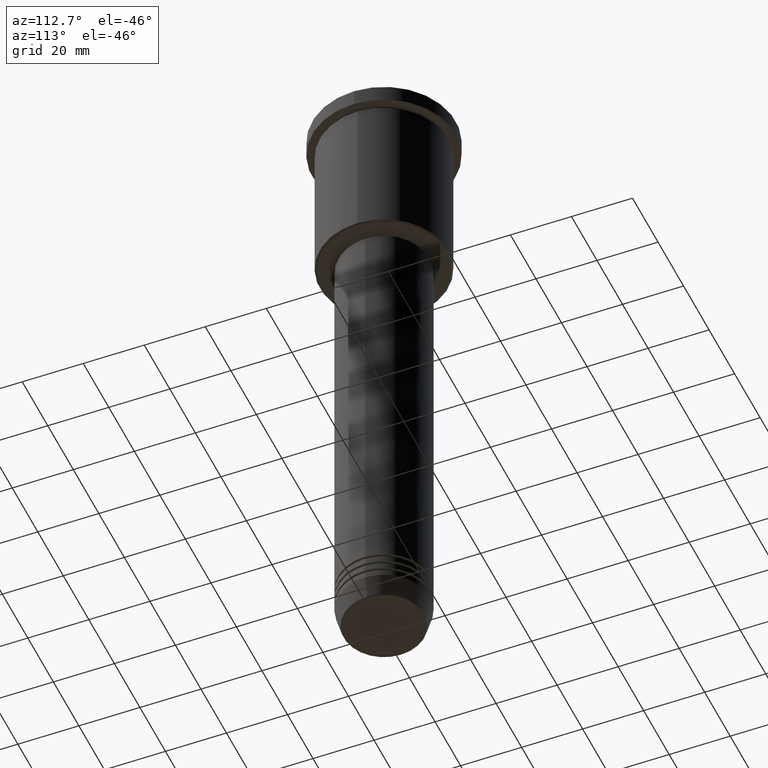
[diagram: clean part render]
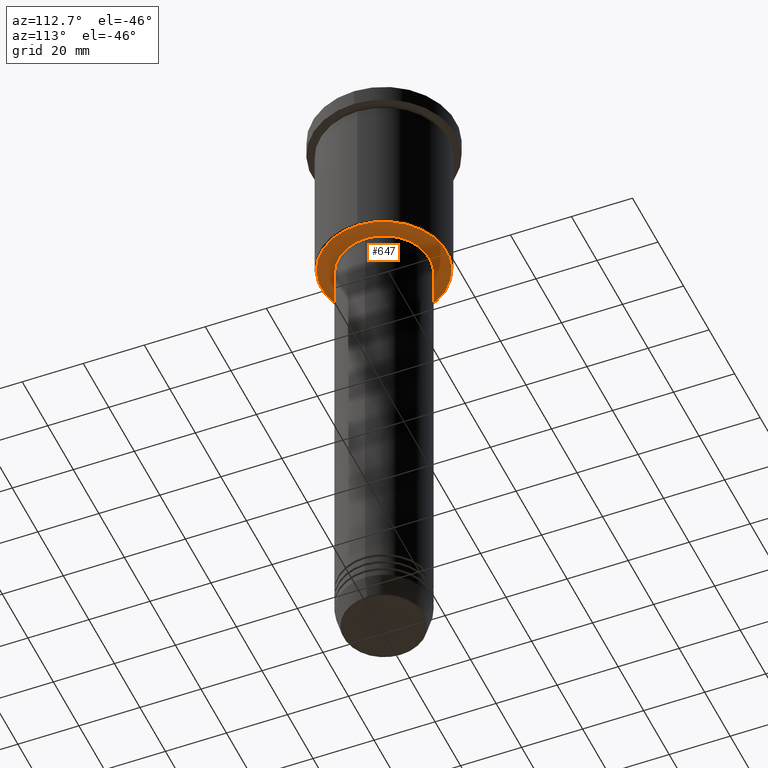
[diagram: same view with one face highlighted and labeled with its STEP entity id]
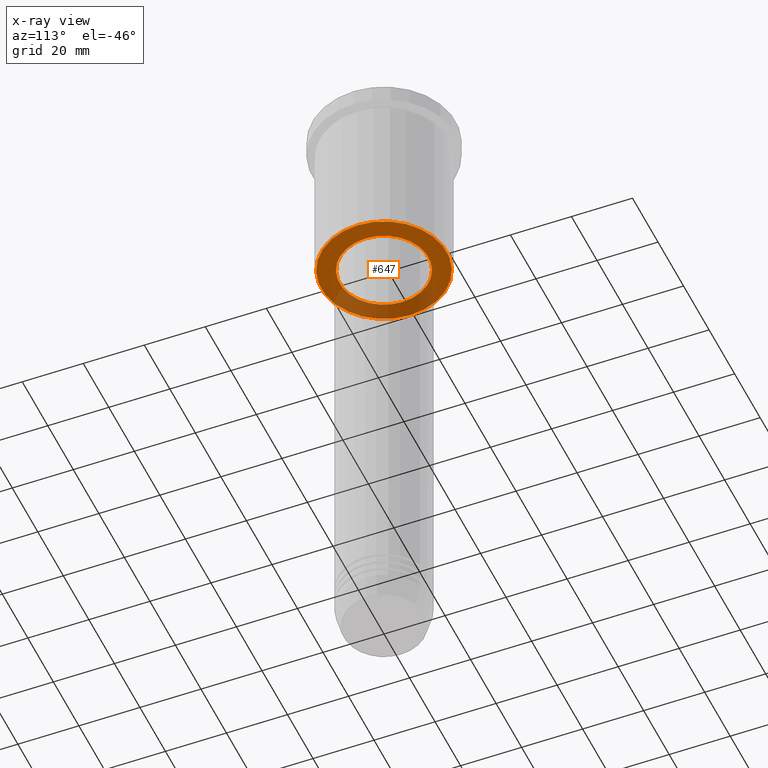
[diagram: x-ray of the same camera — body ghosted, the highlighted face saturated]
A machine part, auxiliary view. The second image highlights one B-rep face of the part: STEP entity #647.
The next image is the same camera in x-ray: the body ghosted, the highlighted face saturated — about 30% of this face is hidden behind the body in this view.
In plain terms, the highlighted planar face has unit normal (0, 0, -1).
Its self-contained STEP definition (entity closure, byte-faithful):
#12 = DIRECTION ( 'NONE',  ( -0.000000000000000000, -0.000000000000000000, 1.000000000000000000 ) ) ;
#17 = DIRECTION ( 'NONE',  ( -1.000000000000000000, 0.000000000000000000, -0.000000000000000000 ) ) ;
#20 = CARTESIAN_POINT ( 'NONE',  ( 0.000000000000000000, 0.000000000000000000, -55.99999999999999289 ) ) ;
#28 = DIRECTION ( 'NONE',  ( 0.000000000000000000, 0.000000000000000000, -1.000000000000000000 ) ) ;
#36 = CIRCLE ( 'NONE', #1009, 20.49999999999998934 ) ;
#67 = EDGE_CURVE ( 'NONE', #375, #561, #36, .T. ) ;
#72 = CIRCLE ( 'NONE', #212, 20.49999999999998934 ) ;
#80 = EDGE_CURVE ( 'NONE', #1175, #848, #135, .T. ) ;
#135 = CIRCLE ( 'NONE', #558, 14.49999999999999822 ) ;
#159 = CARTESIAN_POINT ( 'NONE',  ( 20.49999999999998934, 0.000000000000000000, -55.99999999999999289 ) ) ;
#188 = DIRECTION ( 'NONE',  ( 0.000000000000000000, 0.000000000000000000, -1.000000000000000000 ) ) ;
#212 = AXIS2_PLACEMENT_3D ( 'NONE', #1036, #28, #393 ) ;
#261 = ORIENTED_EDGE ( 'NONE', *, *, #67, .T. ) ;
#324 = EDGE_LOOP ( 'NONE', ( #1018, #1120 ) ) ;
#341 = FACE_OUTER_BOUND ( 'NONE', #480, .T. ) ;
#375 = VERTEX_POINT ( 'NONE', #159 ) ;
#376 = DIRECTION ( 'NONE',  ( 1.000000000000000000, 0.000000000000000000, 0.000000000000000000 ) ) ;
#386 = CARTESIAN_POINT ( 'NONE',  ( 0.000000000000000000, 0.000000000000000000, -55.99999999999999289 ) ) ;
#393 = DIRECTION ( 'NONE',  ( -1.000000000000000000, 0.000000000000000000, 0.000000000000000000 ) ) ;
#474 = CARTESIAN_POINT ( 'NONE',  ( 0.000000000000000000, 21.00000000000000000, -55.99999999999999289 ) ) ;
#477 = DIRECTION ( 'NONE',  ( 0.000000000000000000, 0.000000000000000000, -1.000000000000000000 ) ) ;
#480 = EDGE_LOOP ( 'NONE', ( #261, #1067 ) ) ;
#558 = AXIS2_PLACEMENT_3D ( 'NONE', #20, #12, #376 ) ;
#561 = VERTEX_POINT ( 'NONE', #1011 ) ;
#647 = ADVANCED_FACE ( 'NONE', ( #341, #706 ), #1064, .T. ) ;
#706 = FACE_BOUND ( 'NONE', #324, .T. ) ;
#727 = CARTESIAN_POINT ( 'NONE',  ( -14.49999999999999822, 1.775737858763662015E-15, -55.99999999999999289 ) ) ;
#736 = EDGE_CURVE ( 'NONE', #848, #1175, #971, .T. ) ;
#796 = EDGE_CURVE ( 'NONE', #561, #375, #72, .T. ) ;
#832 = AXIS2_PLACEMENT_3D ( 'NONE', #1042, #951, #959 ) ;
#848 = VERTEX_POINT ( 'NONE', #1063 ) ;
#951 = DIRECTION ( 'NONE',  ( -0.000000000000000000, -0.000000000000000000, 1.000000000000000000 ) ) ;
#959 = DIRECTION ( 'NONE',  ( 1.000000000000000000, 0.000000000000000000, 0.000000000000000000 ) ) ;
#971 = CIRCLE ( 'NONE', #832, 14.49999999999999822 ) ;
#1009 = AXIS2_PLACEMENT_3D ( 'NONE', #386, #188, #1024 ) ;
#1011 = CARTESIAN_POINT ( 'NONE',  ( -20.49999999999998934, 2.541142108230757480E-15, -55.99999999999999289 ) ) ;
#1018 = ORIENTED_EDGE ( 'NONE', *, *, #736, .T. ) ;
#1024 = DIRECTION ( 'NONE',  ( -1.000000000000000000, 0.000000000000000000, 0.000000000000000000 ) ) ;
#1036 = CARTESIAN_POINT ( 'NONE',  ( 0.000000000000000000, 0.000000000000000000, -55.99999999999999289 ) ) ;
#1042 = CARTESIAN_POINT ( 'NONE',  ( 0.000000000000000000, 0.000000000000000000, -55.99999999999999289 ) ) ;
#1063 = CARTESIAN_POINT ( 'NONE',  ( 14.49999999999999822, 0.000000000000000000, -55.99999999999999289 ) ) ;
#1064 = PLANE ( 'NONE',  #1125 ) ;
#1067 = ORIENTED_EDGE ( 'NONE', *, *, #796, .T. ) ;
#1120 = ORIENTED_EDGE ( 'NONE', *, *, #80, .T. ) ;
#1125 = AXIS2_PLACEMENT_3D ( 'NONE', #474, #477, #17 ) ;
#1175 = VERTEX_POINT ( 'NONE', #727 ) ;